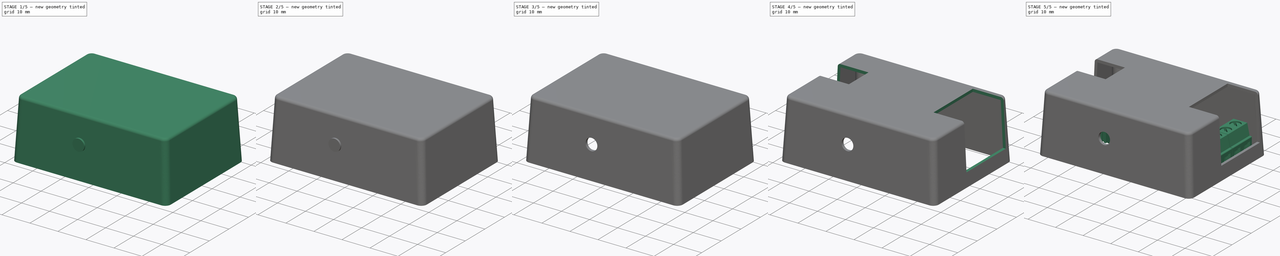
[diagram: build sequence overview — one tinted view per stage of 5, left to right]
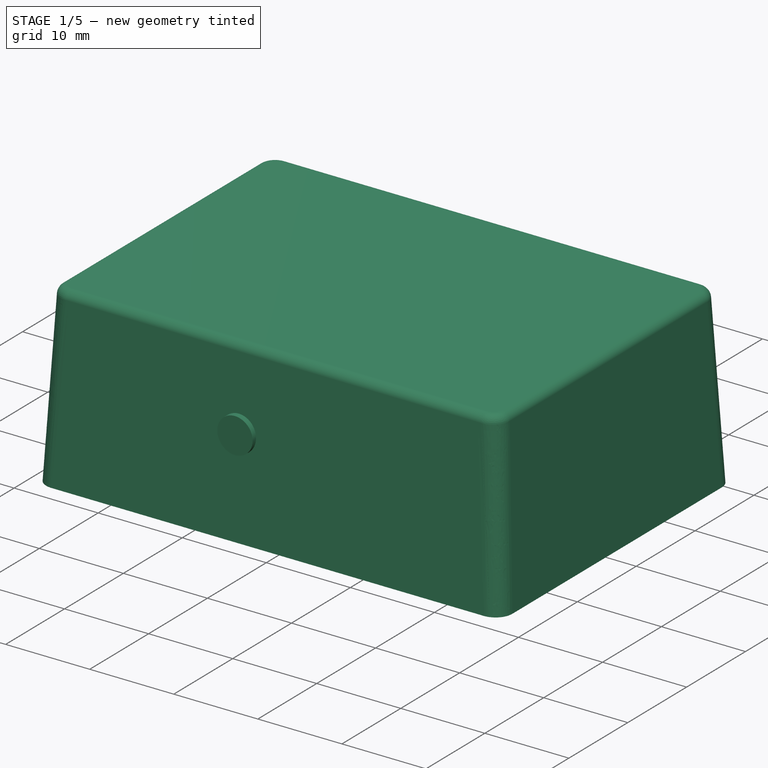
[diagram: stage 1 of 5 — iso view after this stage's code; geometry added in this stage tinted green]
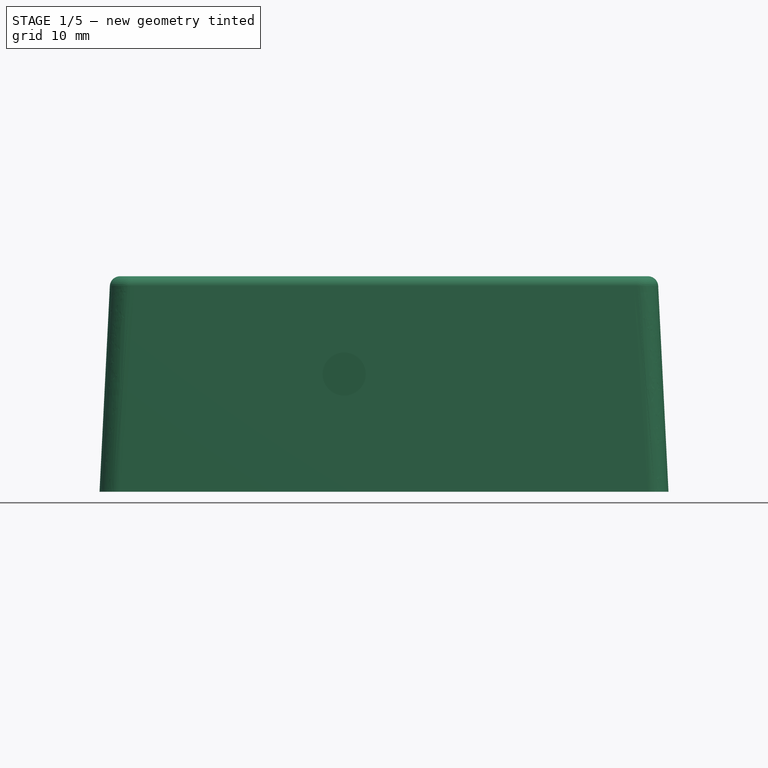
[diagram: stage 1 of 5 — front view after this stage's code; geometry added in this stage tinted green]
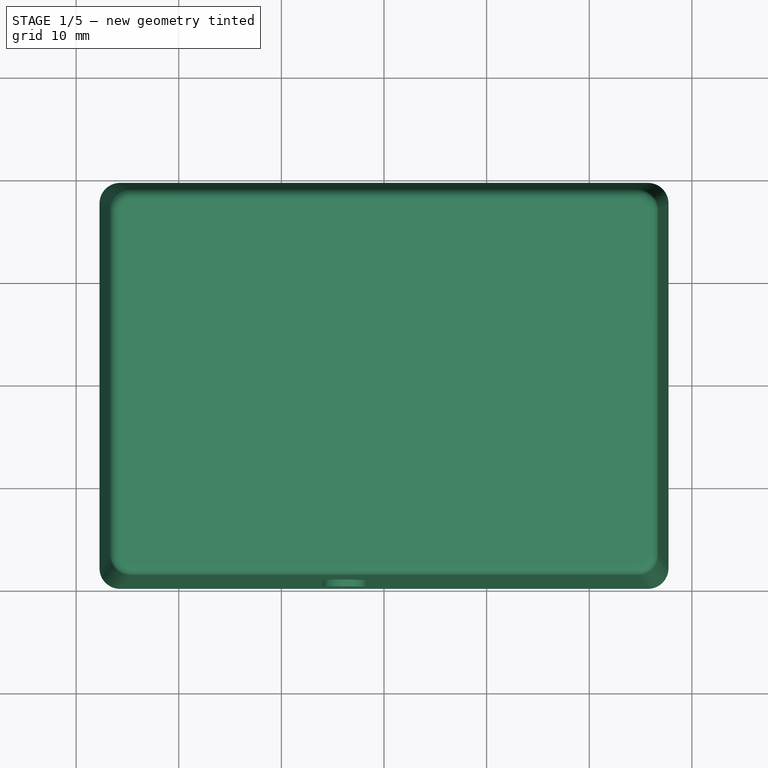
[diagram: stage 1 of 5 — top view after this stage's code; geometry added in this stage tinted green]
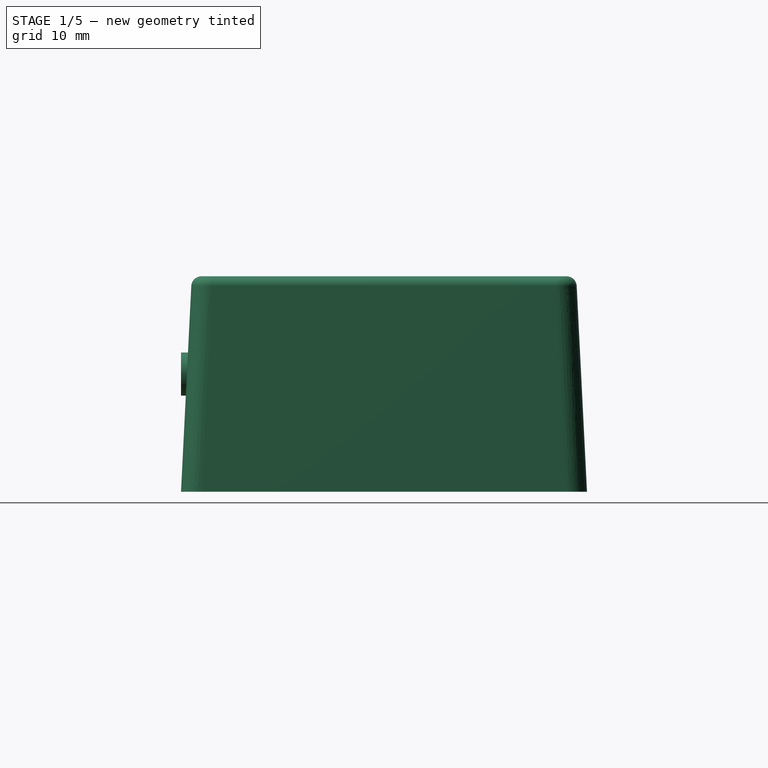
[diagram: stage 1 of 5 — right view after this stage's code; geometry added in this stage tinted green]
FCSTD DOCUMENT  (FreeCAD 0.16R6703 (Git))
Label: RGB_assembly
License: CreativeCommons Attribution-ShareAlike
LicenseURL: http://creativecommons.org/licenses/by-sa/4.0/
objects: App::FeaturePython×12, Part::Cylinder×5, App::DocumentObjectGroup×4, Part::MultiFuse×4, Part::Compound×3, Part::Cut×3, Drawing::FeatureViewPart×3, Part::Feature×2, Sketcher::SketchObject×2, Part::Box×2, Drawing::FeatureViewPython×2, Part::Loft×1, Part::Thickness×1, Part::Chamfer×1, Drawing::FeaturePage×1
note: 24 computed .brp shape members not serialized (recipe doc carries the construction recipe); baked Part::Feature solids carry a one-line shape summary decoded from their .brp

FEATURE [Part::Feature] Compound004  label="PT-10LH01"
  Placement = pos=(-3.4925,-8.215,7) rot=(-1,0,0;1.5708rad)
  shape: bbox 11.04 x 5.2 x 16.02 mm, 104 faces, 5 solids (baked)
FEATURE [App::DocumentObjectGroup] Step_Models
  Group = -> [Compound004,Compound,Compound001,Compound002]
FEATURE [Sketcher::SketchObject] Sketch
  sketch-geometry (8):
    g0: LineSegment StartX=-25.72 StartY=18.78 StartZ=0 EndX=25.72 EndY=18.78 EndZ=0
    g1: LineSegment StartX=26.72 StartY=17.78 StartZ=0 EndX=26.72 EndY=-17.78 EndZ=0
    g2: LineSegment StartX=25.72 StartY=-18.78 StartZ=0 EndX=-25.72 EndY=-18.78 EndZ=0
    g3: LineSegment StartX=-26.72 StartY=-17.78 StartZ=0 EndX=-26.72 EndY=17.78 EndZ=0
    g4: ArcOfCircle CenterX=-25.72 CenterY=17.78 CenterZ=0 NormalX=0 NormalY=0 NormalZ=1 Radius=1 StartAngle=1.5708 EndAngle=3.14159
    g5: ArcOfCircle CenterX=-25.72 CenterY=-17.78 CenterZ=0 NormalX=0 NormalY=0 NormalZ=1 Radius=1 StartAngle=3.14159 EndAngle=4.71239
    g6: ArcOfCircle CenterX=25.72 CenterY=17.78 CenterZ=0 NormalX=0 NormalY=0 NormalZ=1 Radius=1 StartAngle=0 EndAngle=1.5708
    g7: ArcOfCircle CenterX=25.72 CenterY=-17.78 CenterZ=0 NormalX=0 NormalY=0 NormalZ=1 Radius=1 StartAngle=4.71239 EndAngle=6.28319
  constraints (19):
    c: Horizontal(g0)
    c: Horizontal(g2)
    c: Vertical(g1)
    c: Vertical(g3)
    c: Tangent(g3,g4) = 1.5708
    c: Tangent(g0,g4) = 1.5708
    c: Tangent(g3,g5) = 1.5708
    c: Tangent(g2,g5) = 1.5708
    c: Tangent(g0,g6) = 1.5708
    c: Tangent(g1,g6) = 1.5708
    c: Tangent(g2,g7) = 1.5708
    c: Tangent(g1,g7) = 1.5708
    c: Symmetric(g4,g7,g-1)
    c: Radius(g6) = 1
    c: DistanceY(g2,g0) = 37.56
    c: DistanceX(g3,g1) = 53.44
    c: Equal(g4,g6)
    c: Equal(g6,g7)
    c: Equal(g7,g5)
FEATURE [Sketcher::SketchObject] Sketch001
  Placement = pos=(0,0,20) rot=(0,0,1;0rad)
  sketch-geometry (8):
    g0: LineSegment StartX=-24.7175 StartY=17.78 StartZ=0 EndX=24.7175 EndY=17.78 EndZ=0
    g1: LineSegment StartX=25.7175 StartY=16.78 StartZ=0 EndX=25.7175 EndY=-16.78 EndZ=0
    g2: LineSegment StartX=24.7175 StartY=-17.78 StartZ=0 EndX=-24.7175 EndY=-17.78 EndZ=0
    g3: LineSegment StartX=-25.7175 StartY=-16.78 StartZ=0 EndX=-25.7175 EndY=16.78 EndZ=0
    g4: ArcOfCircle CenterX=-24.7175 CenterY=16.78 CenterZ=0 NormalX=0 NormalY=0 NormalZ=1 Radius=1 StartAngle=1.5708 EndAngle=3.14159
    g5: ArcOfCircle CenterX=-24.7175 CenterY=-16.78 CenterZ=0 NormalX=0 NormalY=0 NormalZ=1 Radius=1 StartAngle=3.14159 EndAngle=4.71239
    g6: ArcOfCircle CenterX=24.7175 CenterY=16.78 CenterZ=0 NormalX=0 NormalY=0 NormalZ=1 Radius=1 StartAngle=0 EndAngle=1.5708
    g7: ArcOfCircle CenterX=24.7175 CenterY=-16.78 CenterZ=0 NormalX=0 NormalY=0 NormalZ=1 Radius=1 StartAngle=4.71239 EndAngle=6.28319
  constraints (19):
    c: Horizontal(g0)
    c: Horizontal(g2)
    c: Vertical(g1)
    c: Vertical(g3)
    c: Tangent(g3,g4) = 1.5708
    c: Tangent(g0,g4) = 1.5708
    c: Tangent(g3,g5) = 1.5708
    c: Tangent(g2,g5) = 1.5708
    c: Tangent(g0,g6) = 1.5708
    c: Tangent(g1,g6) = 1.5708
    c: Tangent(g2,g7) = 1.5708
    c: Tangent(g1,g7) = 1.5708
    c: Symmetric(g4,g7,g-1)
    c: Equal(g5,g4)
    c: Equal(g4,g6)
    c: Equal(g6,g7)
    c: Radius(g6) = 1
    c: DistanceY(g2,g0) = 35.56
    c: DistanceX(g3,g1) = 51.435
FEATURE [Part::Cylinder] Cylinder
  Angle = 360
  Height = 15.2
  Placement = pos=(21.2725,-13.335,4.8) rot=(0,0,1;0rad)
  Radius = 2.1
FEATURE [Part::Cylinder] Cylinder004
  Angle = 360
  Height = 19.78
  Placement = pos=(-3.8797,0,11.4707) rot=(1,0,0;1.5708rad)
  Radius = 2.1
FEATURE [App::FeaturePython] Dimension022  # Draft dimension (typed FeaturePython)
  Dimline = (-31,4,0)
  Direction = (0,0,0)
  Distance = 10
  End = (-15.6518,8.45,0)
  Normal = (0,0,1)
  Start = (-15.6518,-1.55,0)
FEATURE [App::FeaturePython] Dimension023  # Draft dimension (typed FeaturePython)
  Dimline = (-31,-1.55,0)
  Direction = (0,0,0)
  Distance = 18.2312
  End = (-25.7209,-1.55,0)
  Normal = (0,0,1)
  Start = (-25.7209,-19.7812,0)
FEATURE [App::FeaturePython] Dimension024  # Draft dimension (typed FeaturePython)
  Dimline = (31,-3,0)
  Direction = (0,0,0)
  Distance = 20
  End = (28.1518,-3.31,0)
  Normal = (0,0,1)
  Start = (28.1518,16.69,0)
FEATURE [App::FeaturePython] Dimension025  # Draft dimension (typed FeaturePython)
  Dimline = (31,16.69,0)
  Direction = (0,0,0)
  Distance = 3.09125
  End = (25.7209,16.69,0)
  Normal = (0,0,1)
  Start = (25.7209,19.7812,0)
FEATURE [App::FeaturePython] Dimension026  # Draft dimension (typed FeaturePython)
  Dimline = (40,-18,0)
  Direction = (0,0,0)
  Distance = 39.5625
  End = (25.7209,-19.7812,0)
  Normal = (0,0,1)
  Start = (25.7209,19.7812,0)
FEATURE [App::FeaturePython] Dimension029  # Draft dimension (typed FeaturePython)
  Dimline = (28,23,0)
  Direction = (0,0,0)
  Distance = 12
  End = (27.72,16.69,0)
  Normal = (0,0,1)
  Start = (15.72,16.69,0)
FEATURE [App::FeaturePython] Dimension  # Draft dimension (typed FeaturePython)
  Dimline = (27,-24,0)
  Direction = (0,0,0)
  Distance = 55.4375
  End = (27.7187,-17.7825,0)
  Normal = (0,0,1)
  Start = (-27.7187,-17.7825,0)
FEATURE [App::DocumentObjectGroup] Group  label="DimensionXY"
  Group = -> [Dimension026,Dimension025,Dimension024,Dimension023,Dimension022,Dimension029,Dimension]
FEATURE [Part::Loft] Loft
  Closed = false
  Ruled = false
  Sections = -> [Sketch,Sketch001]
  Solid = true
FEATURE [Part::Thickness] Thickness
  Faces = -> Loft [Face13]
  Intersection = false
  Join = 0
  Mode = 0
  SelfIntersection = false
  Value = 1
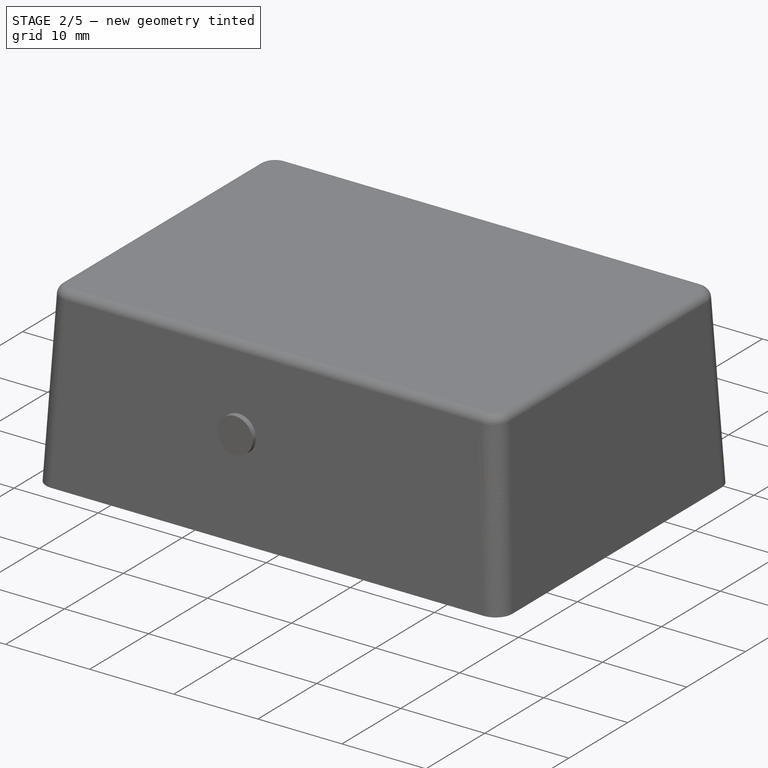
[diagram: stage 2 of 5 — iso view after this stage's code; geometry added in this stage tinted green]
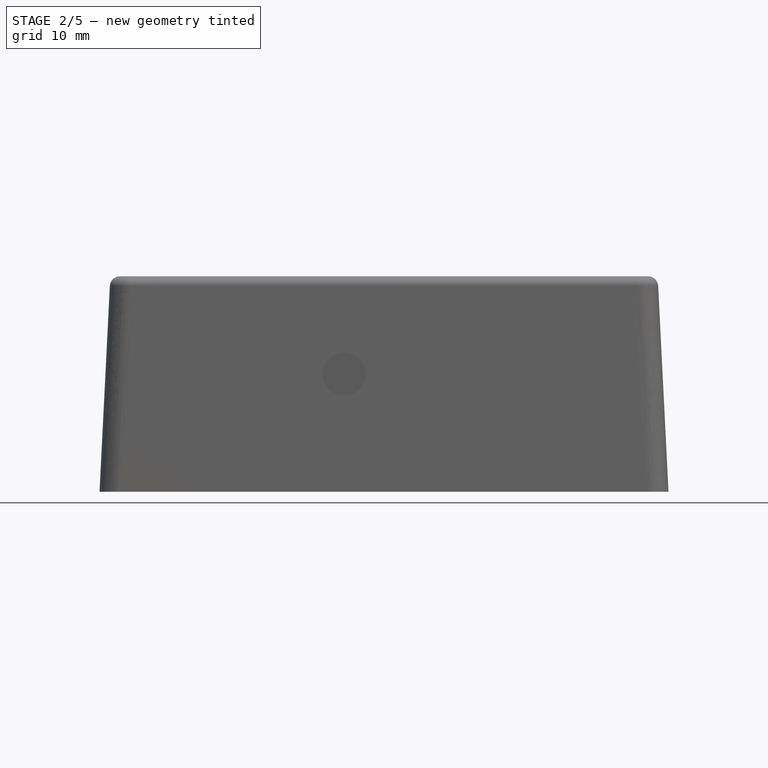
[diagram: stage 2 of 5 — front view after this stage's code; geometry added in this stage tinted green]
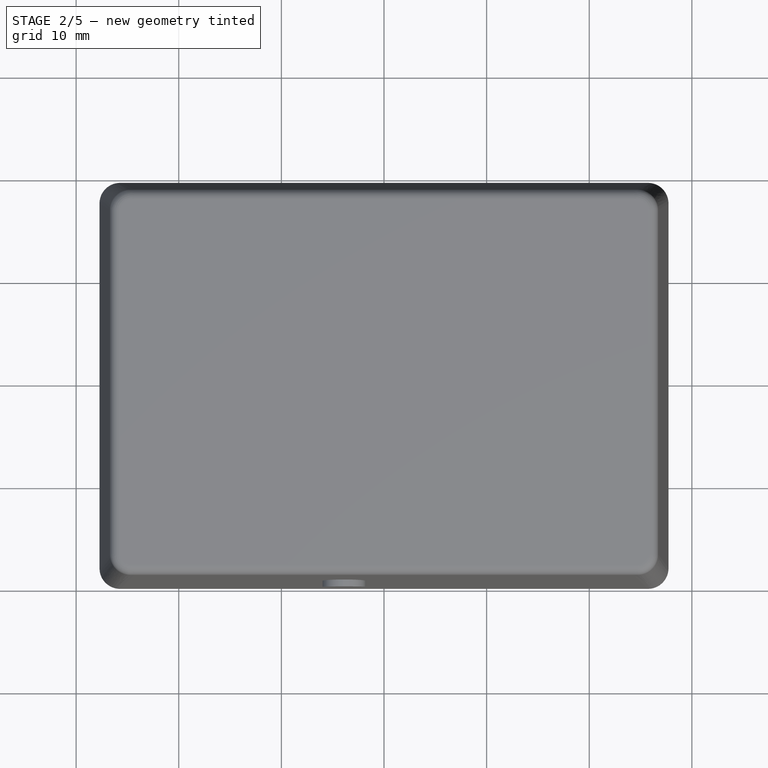
[diagram: stage 2 of 5 — top view after this stage's code; geometry added in this stage tinted green]
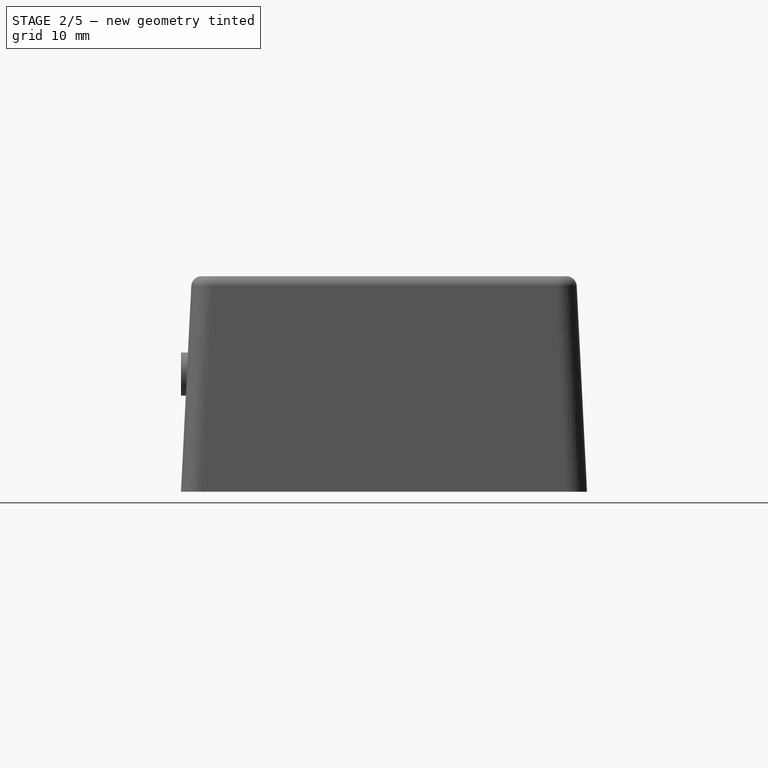
[diagram: stage 2 of 5 — right view after this stage's code; geometry added in this stage tinted green]
FEATURE [Part::Cylinder] Cylinder001
  Angle = 360
  Height = 15.2
  Placement = pos=(-21.2725,13.335,4.8) rot=(0,0,1;0rad)
  Radius = 2.1
FEATURE [Part::Cylinder] Cylinder002
  Angle = 360
  Height = 3
  Placement = pos=(21.2725,-13.335,1.8) rot=(0,0,1;0rad)
  Radius = 1.4
FEATURE [Part::MultiFuse] Fusion
  Shapes = -> [Thickness,Cylinder]
FEATURE [Part::MultiFuse] Fusion001
  Shapes = -> [Fusion,Cylinder001]
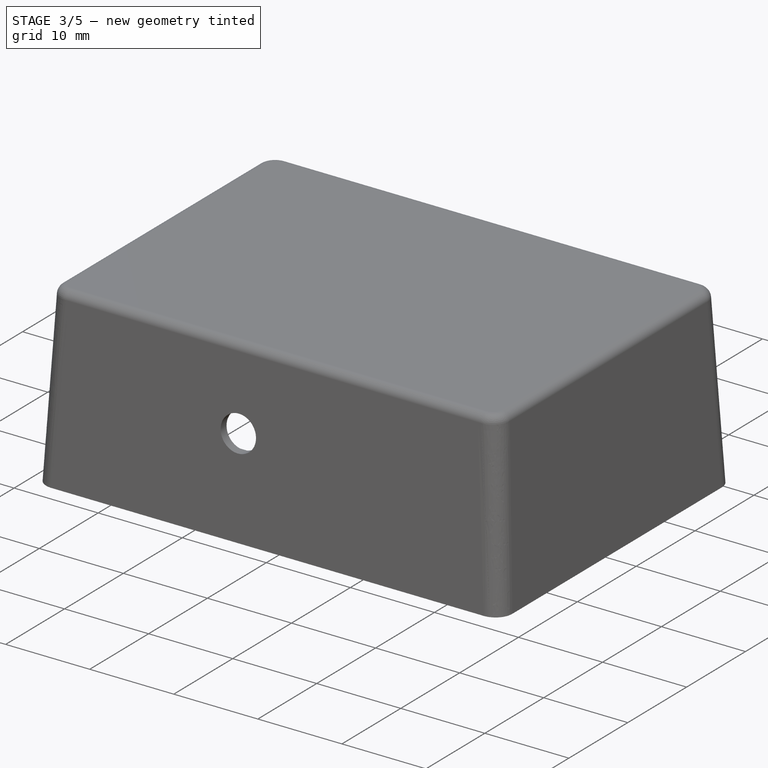
[diagram: stage 3 of 5 — iso view after this stage's code; geometry added in this stage tinted green]
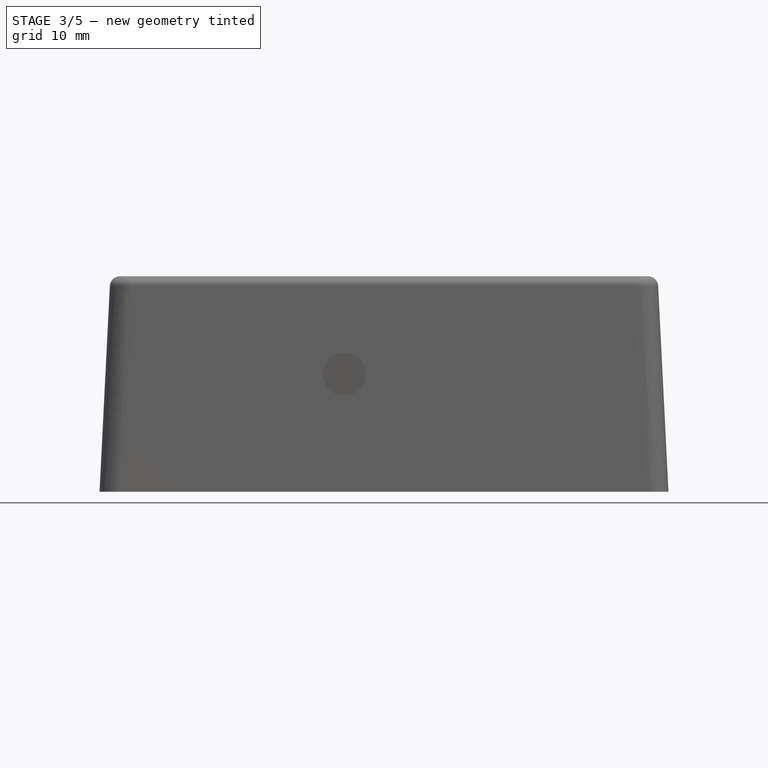
[diagram: stage 3 of 5 — front view after this stage's code; geometry added in this stage tinted green]
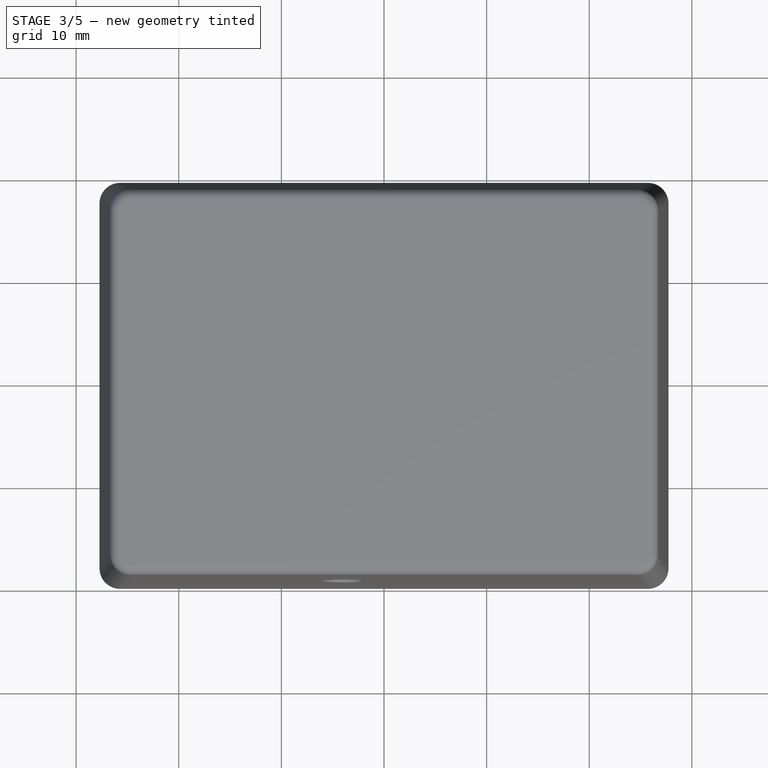
[diagram: stage 3 of 5 — top view after this stage's code; geometry added in this stage tinted green]
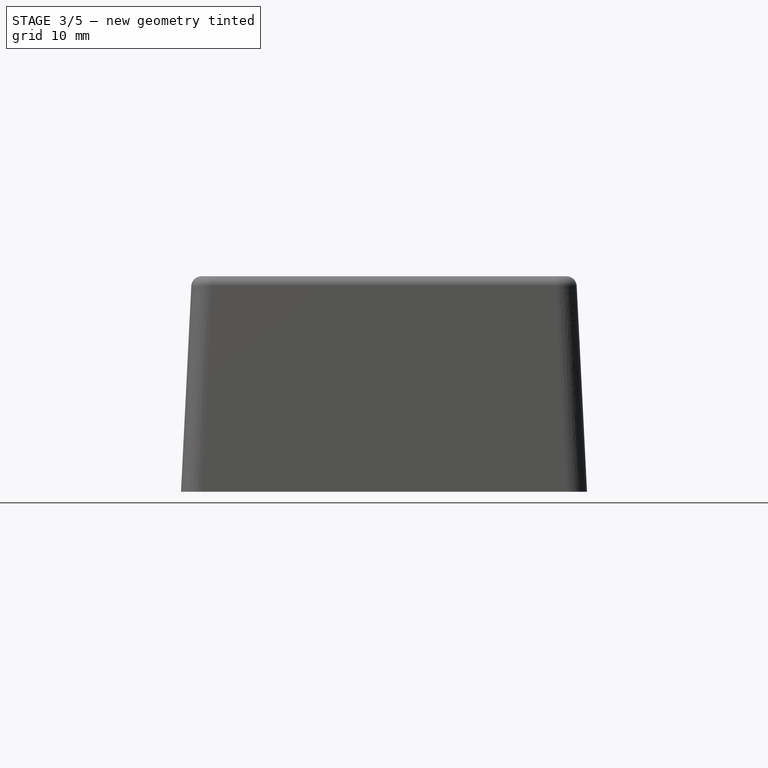
[diagram: stage 3 of 5 — right view after this stage's code; geometry added in this stage tinted green]
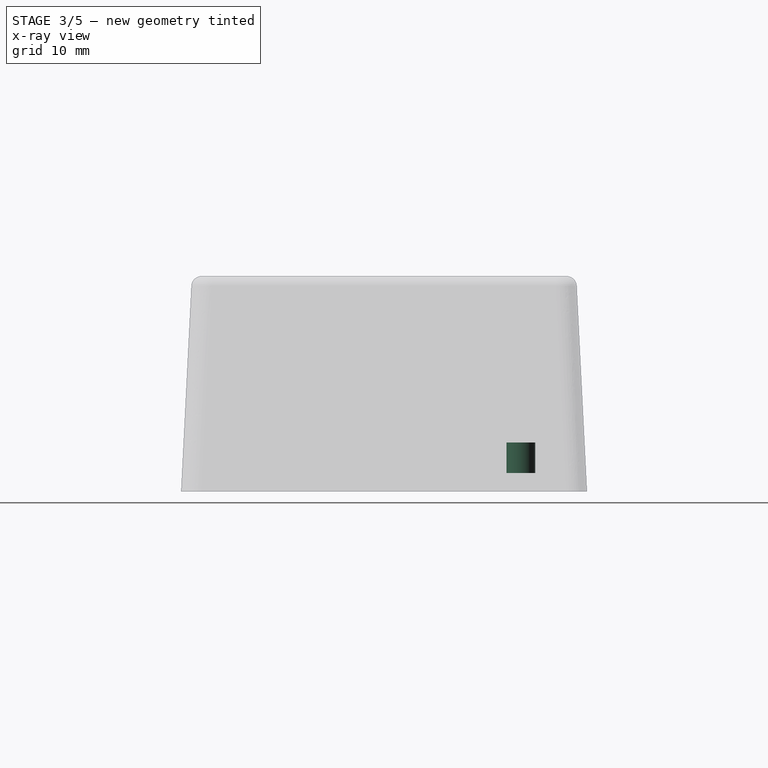
[diagram: stage 3 of 5 — x-ray composite at the right view; earlier geometry ghosted, this stage's added geometry solid]
FEATURE [Part::Cylinder] Cylinder003
  Angle = 360
  Height = 3
  Placement = pos=(-21.2725,13.335,1.8) rot=(0,0,1;0rad)
  Radius = 1.4
FEATURE [Part::MultiFuse] Fusion002
  Shapes = -> [Fusion001,Cylinder002]
FEATURE [Part::MultiFuse] Fusion003
  Shapes = -> [Fusion002,Cylinder003]
FEATURE [Part::Cut] Cut
  Base = -> Fusion003
  Tool = -> Cylinder004
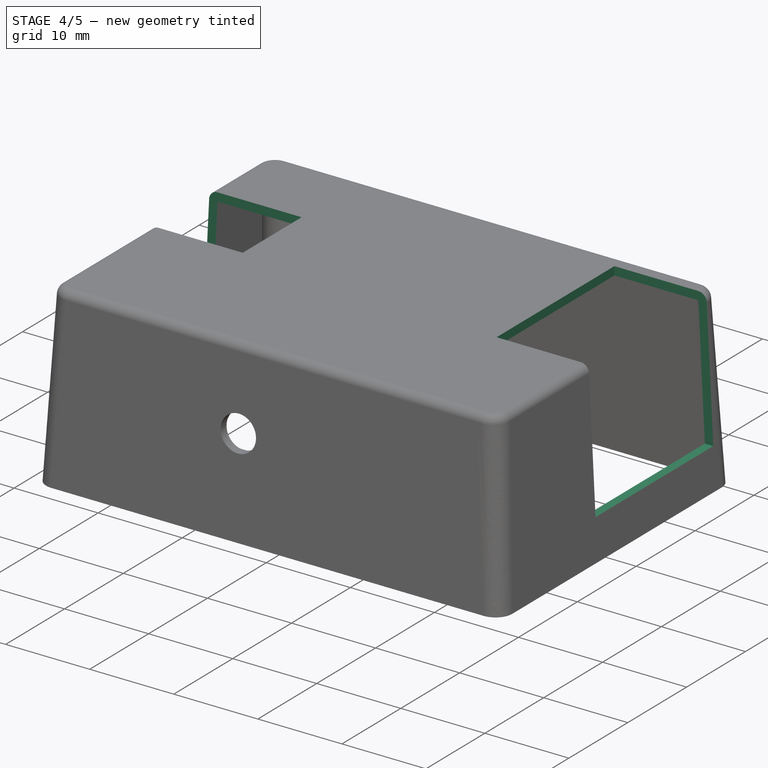
[diagram: stage 4 of 5 — iso view after this stage's code; geometry added in this stage tinted green]
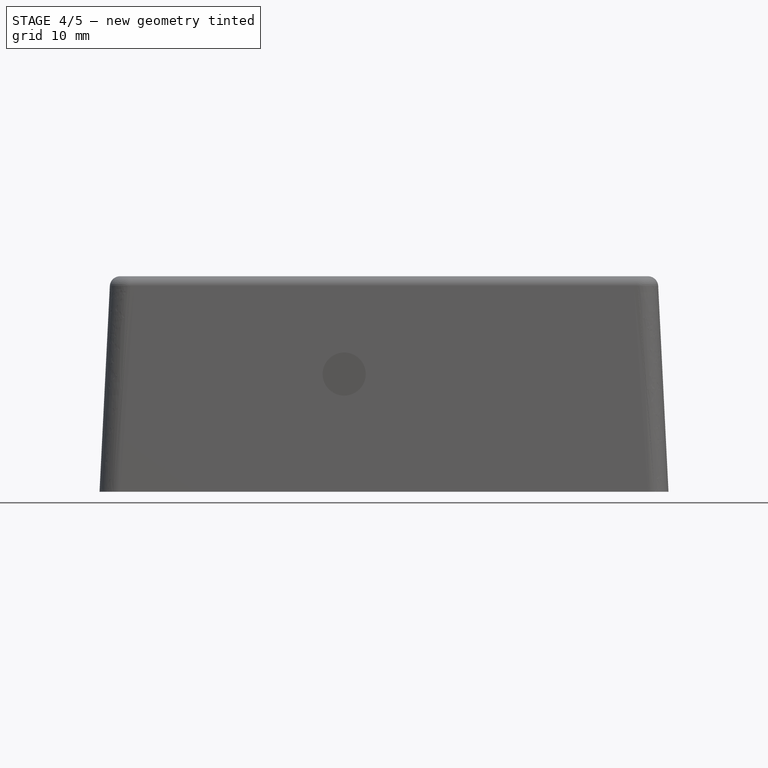
[diagram: stage 4 of 5 — front view after this stage's code; geometry added in this stage tinted green]
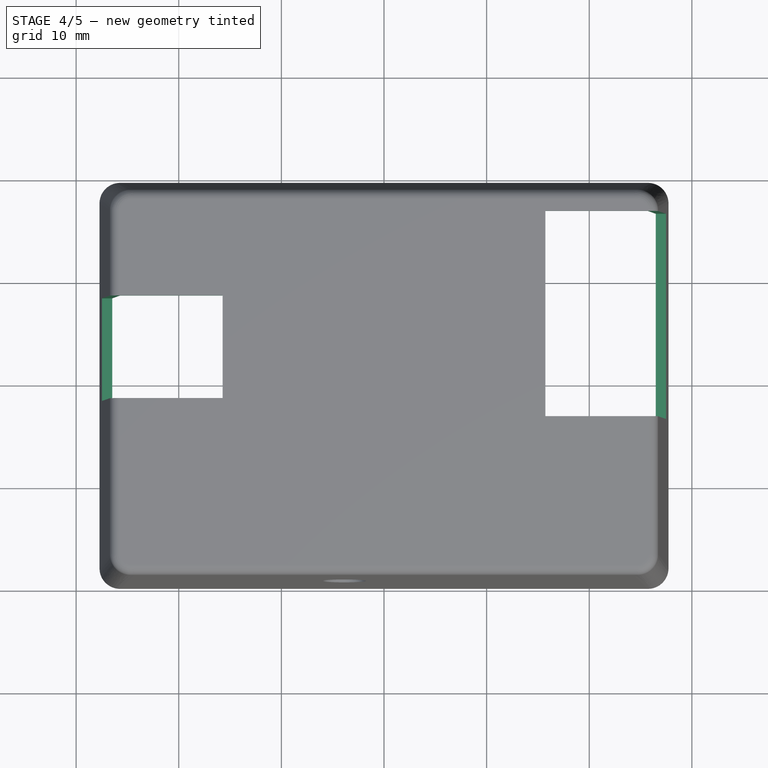
[diagram: stage 4 of 5 — top view after this stage's code; geometry added in this stage tinted green]
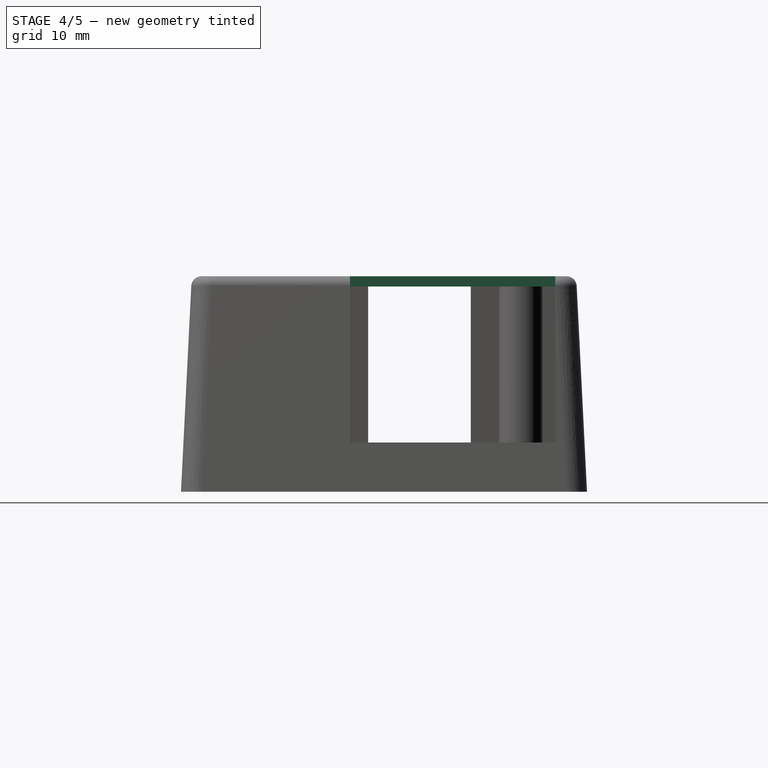
[diagram: stage 4 of 5 — right view after this stage's code; geometry added in this stage tinted green]
FEATURE [Part::Box] Box  label="Cube"
  Height = 16.2
  Length = 12
  Placement = pos=(15.72,-3.31,4.8) rot=(0,0,1;0rad)
  Width = 20
FEATURE [Part::Box] Box001  label="Cube001"
  Height = 16.2
  Length = 12
  Placement = pos=(-27.72,-1.55,4.8) rot=(0,0,1;0rad)
  Width = 10
FEATURE [Part::Cut] Cut001
  Base = -> Cut
  Tool = -> Box
FEATURE [Part::Cut] Cut002
  Base = -> Cut001
  Tool = -> Box001
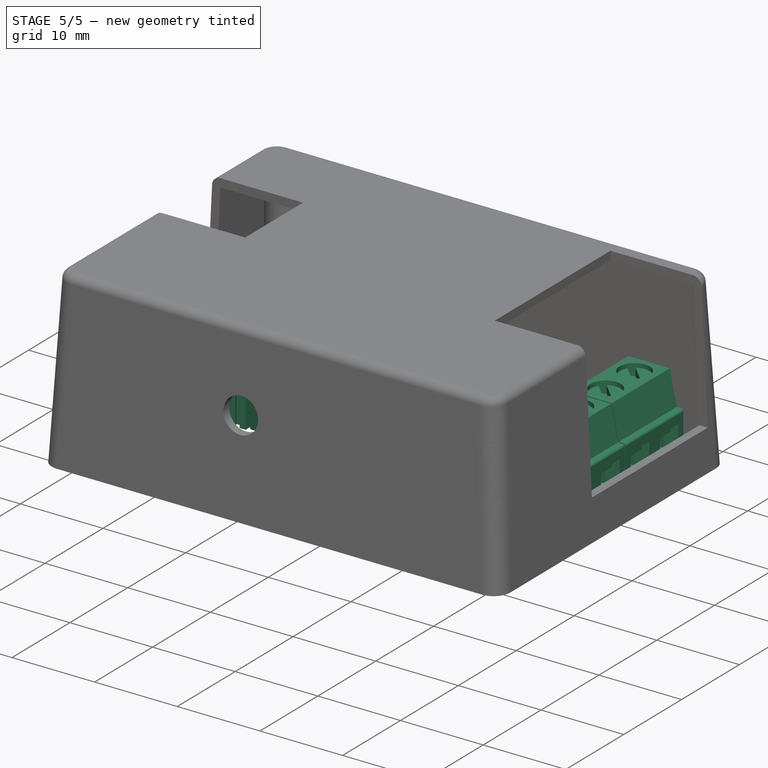
[diagram: stage 5 of 5 — iso view after this stage's code; geometry added in this stage tinted green]
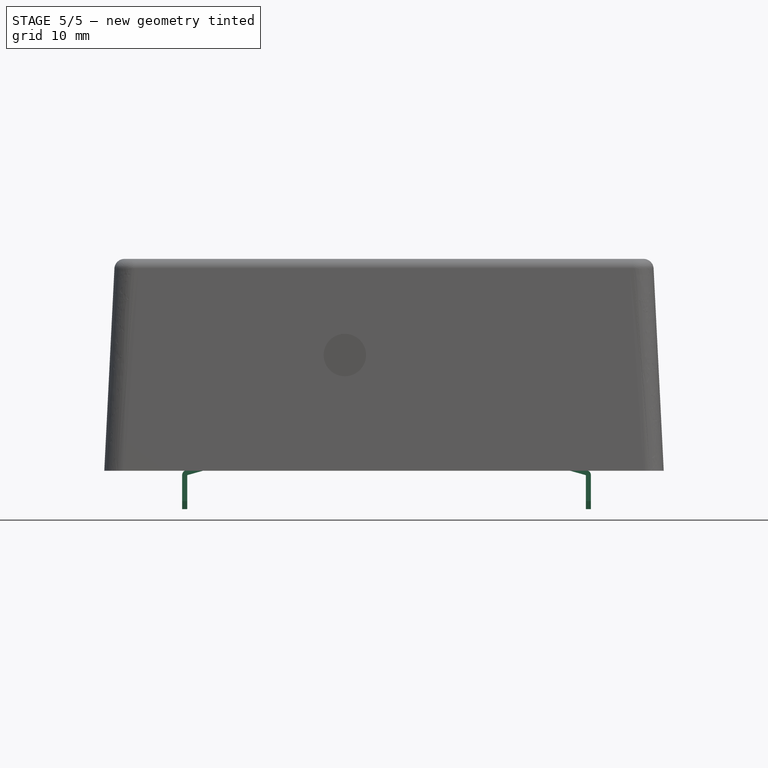
[diagram: stage 5 of 5 — front view after this stage's code; geometry added in this stage tinted green]
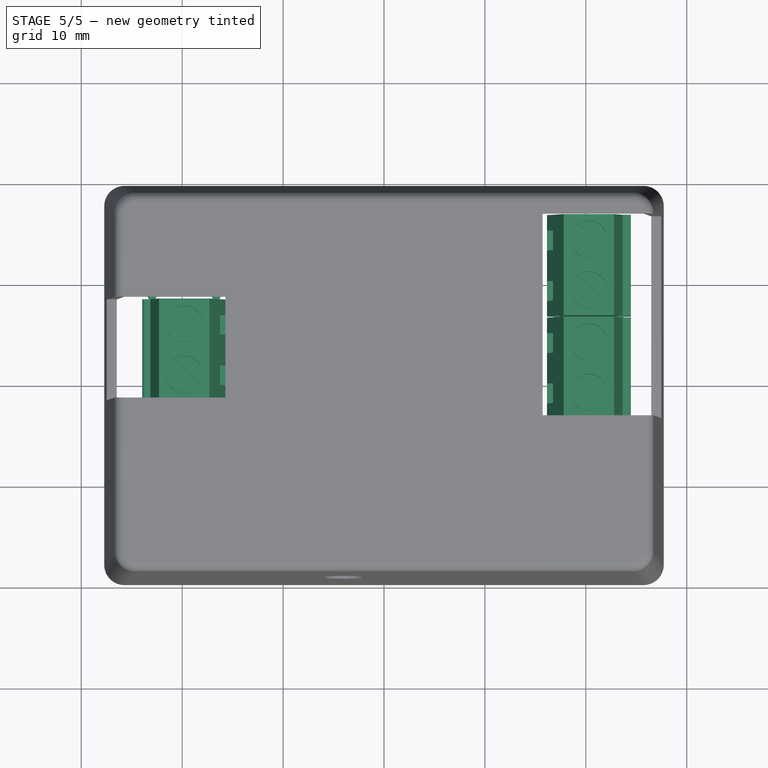
[diagram: stage 5 of 5 — top view after this stage's code; geometry added in this stage tinted green]
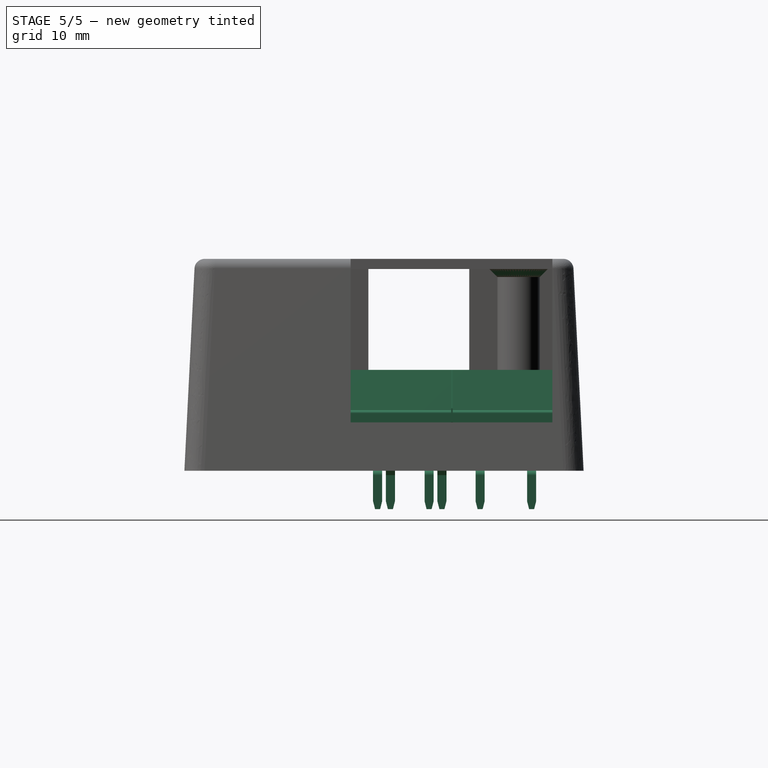
[diagram: stage 5 of 5 — right view after this stage's code; geometry added in this stage tinted green]
FEATURE [Part::Feature] Pcb
  Placement = pos=(-144.463,78.74,0) rot=(0,0,1;0rad)
  shape: bbox 51.44 x 35.56 x 1.6 mm, 54 faces (baked)
FEATURE [App::DocumentObjectGroup] Board_Geoms
  Group = -> [Pcb]
FEATURE [Part::Compound] Compound  label="pcb-terminal-block-female-1x2"
  Placement = pos=(20.3018,1.655,0) rot=(0,0,1;0rad)
FEATURE [Part::Compound] Compound001  label="pcb-terminal-block-female-1x003"
  Placement = pos=(20.3018,11.815,0) rot=(0,0,1;0rad)
FEATURE [Part::Compound] Compound002  label="pcb-terminal-block-female-1x004"
  Placement = pos=(-19.8018,3.45,0) rot=(0,0,1;3.14159rad)
FEATURE [App::FeaturePython] Dimension030  # Draft dimension (typed FeaturePython)
  Dimline = (40,0,11)
  Direction = (0,0,0)
  Distance = 21
  End = (27.7213,0,0)
  Normal = (0,-1,0)
  Start = (27.72,0,21)
FEATURE [App::FeaturePython] Dimension031  # Draft dimension (typed FeaturePython)
  Dimline = (31,0,10)
  Direction = (0,0,0)
  Distance = 16.2
  End = (27.72,0,4.8)
  Normal = (0,-1,0)
  Start = (27.72,0,21)
FEATURE [Part::Chamfer] Chamfer
  Base = -> Cut002
  Edges = 4 edges r=0.8: [Edge1,Edge6,Edge27,Edge155]
FEATURE [App::FeaturePython] Dimension032  # Draft dimension (typed FeaturePython)
  Dimline = (-30.9702,0,20.5134)
  Direction = (0,0,0)
  Distance = 9.5293
  End = (-3.8797,0,21)
  Normal = (0,-1,0)
  Start = (-3.8797,0,11.4707)
FEATURE [App::FeaturePython] Dimension034  # Draft dimension (typed FeaturePython)
  Dimline = (-3.86807,0,13.5707)
  Direction = (0,0,0)
  Distance = 4.2
  End = (-3.86807,0,13.5707)
  LinkedGeometry = -> [Cylinder004]
  Normal = (0,1,0)
  Start = (-3.89133,0,9.37073)
  Support = -> Cylinder004
FEATURE [App::FeaturePython] Dimension035  # Draft dimension (typed FeaturePython)
  Dimline = (25.9947,0,24.9354)
  Direction = (0,0,0)
  Distance = 31.5997
  End = (27.72,0,11.4707)
  Normal = (0,-1,0)
  Start = (-3.8797,0,11.4707)
FEATURE [App::DocumentObjectGroup] Group001  label="DimensionZ"
  Group = -> [Dimension030,Dimension031,Dimension032,Dimension034,Dimension035]
FEATURE [Drawing::FeatureViewPart] Ortho  label="Ortho_0_0"
  Direction = (0,0,1)
  HiddenWidth = 0.15
  LineWidth = 0.35
  Rotation = 0
  Scale = 1.5
  ShowHiddenLines = false
  ShowSmoothLines = false
  Source = -> Chamfer
  Tolerance = 0.05
  ViewResult = <blob: 4439 chars omitted>
  Visible = true
  X = 191.306
  Y = 60.0573
FEATURE [Drawing::FeatureViewPart] Ortho001  label="Ortho_0_-1"
  Direction = (0,-1,0)
  HiddenWidth = 0.15
  LineWidth = 0.35
  Rotation = 90
  Scale = 1.5
  ShowHiddenLines = false
  ShowSmoothLines = false
  Source = -> Chamfer
  Tolerance = 0.05
  ViewResult = <blob: 4951 chars omitted>
  Visible = true
  X = 191.306
  Y = 141.615
FEATURE [Drawing::FeatureViewPart] Ortho002  label="Ortho_-1_-1"
  Direction = (-0.57735,-0.57735,0.57735)
  HiddenWidth = 0.15
  LineWidth = 0.35
  Rotation = -60
  Scale = 1.5
  ShowHiddenLines = false
  ShowSmoothLines = false
  Source = -> Chamfer
  Tolerance = 0.05
  ViewResult = <blob: 6122 chars omitted>
  Visible = true
  X = 68.7252
  Y = 132.294
FEATURE [Drawing::FeatureViewPython] ViewGroup  # drawing view (typed FeaturePython)
  Direction = (0,0,0)
  FillStyle = 0
  FontSize = 12
  LineStyle = 0
  LineWidth = 0.2
  Rotation = 0
  Scale = 1.5
  Source = -> Group
  ViewResult = <blob: 7212 chars omitted>
  Visible = true
  X = 191.31
  Y = 60.06
FEATURE [Drawing::FeatureViewPython] ViewGroup001  # drawing view (typed FeaturePython)
  Direction = (0,-1,0)
  FillStyle = 0
  FontSize = 12
  LineStyle = 0
  LineWidth = 0.2
  Rotation = 90
  Scale = 1.5
  Source = -> Group001
  ViewResult = <blob: 5578 chars omitted>
  Visible = true
  X = 191.31
  Y = 141.61
FEATURE [Drawing::FeaturePage] Page
  EditableTexts = MARCELO VIOQUE | RGB CAMBIA COLOR | COTAS EN MM | A4 | X / Y | 1.1 | PN | 0002 | 05/09/2016 | REV A
  Group = -> [Ortho,Ortho001,Ortho002,ViewGroup,ViewGroup001]
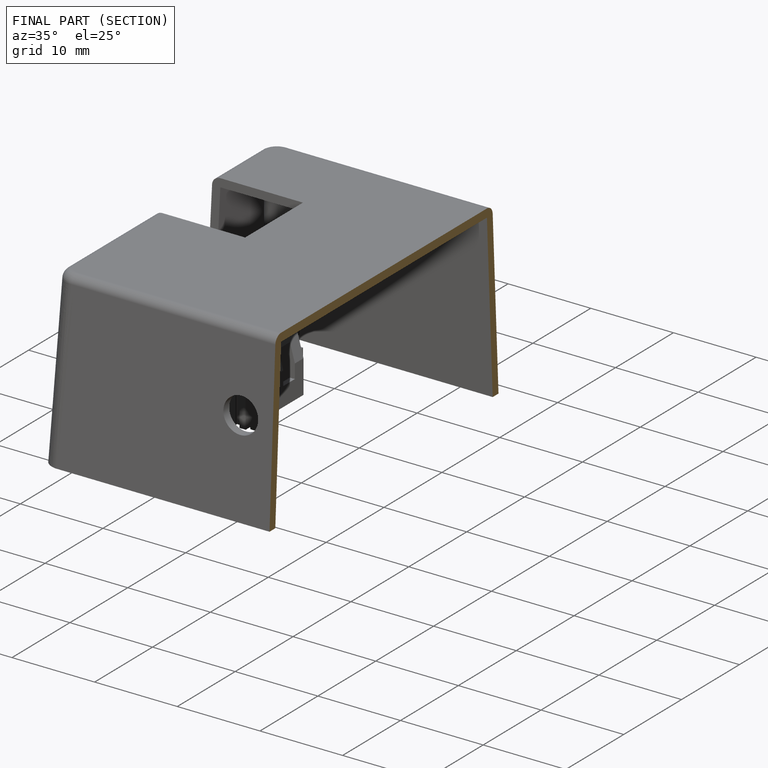
[diagram: finished part — half-section view (interior)]
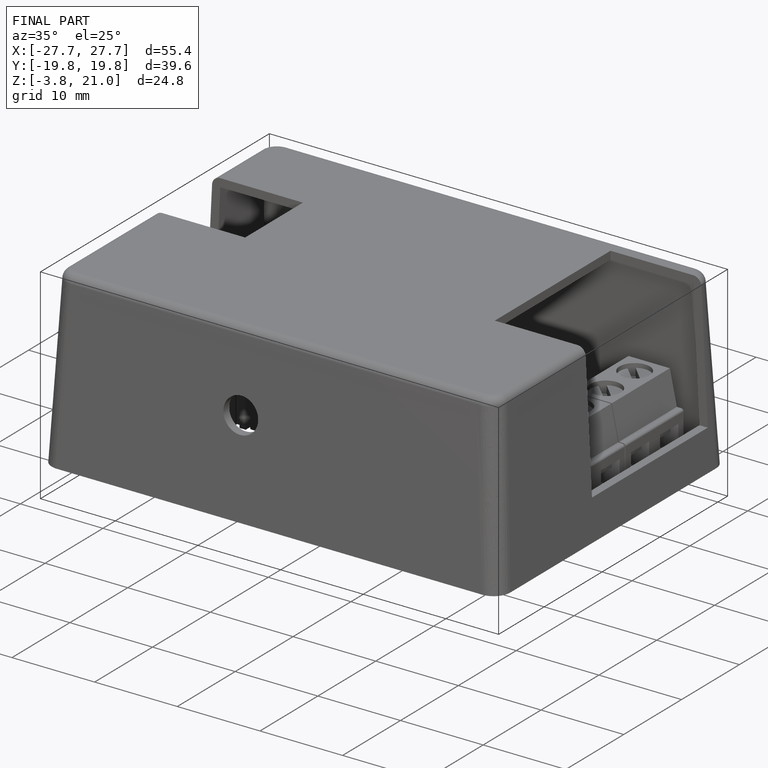
[diagram: finished part — iso view with bounding-box wireframe]
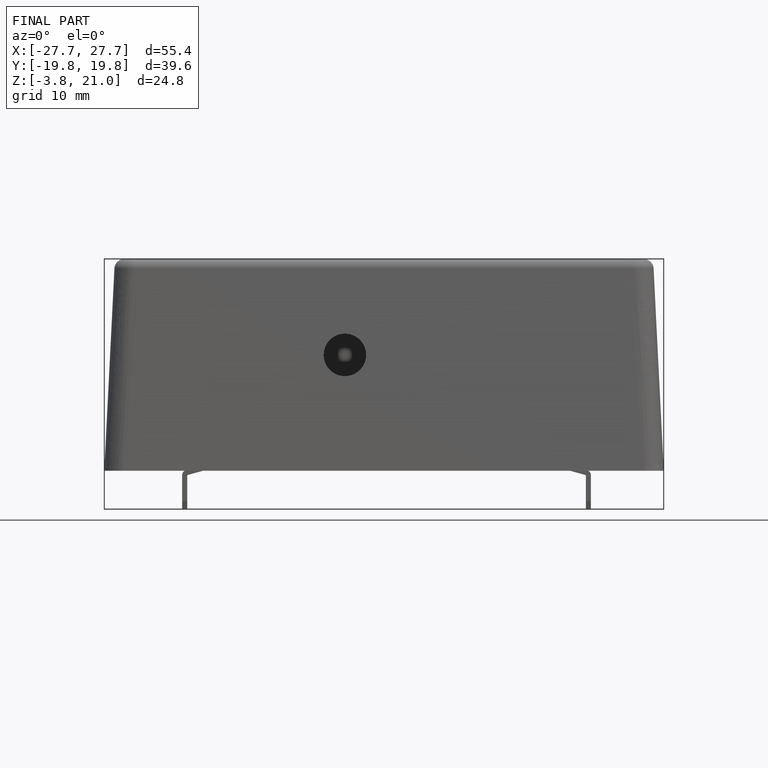
[diagram: finished part — front view with bounding-box wireframe]
